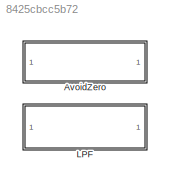
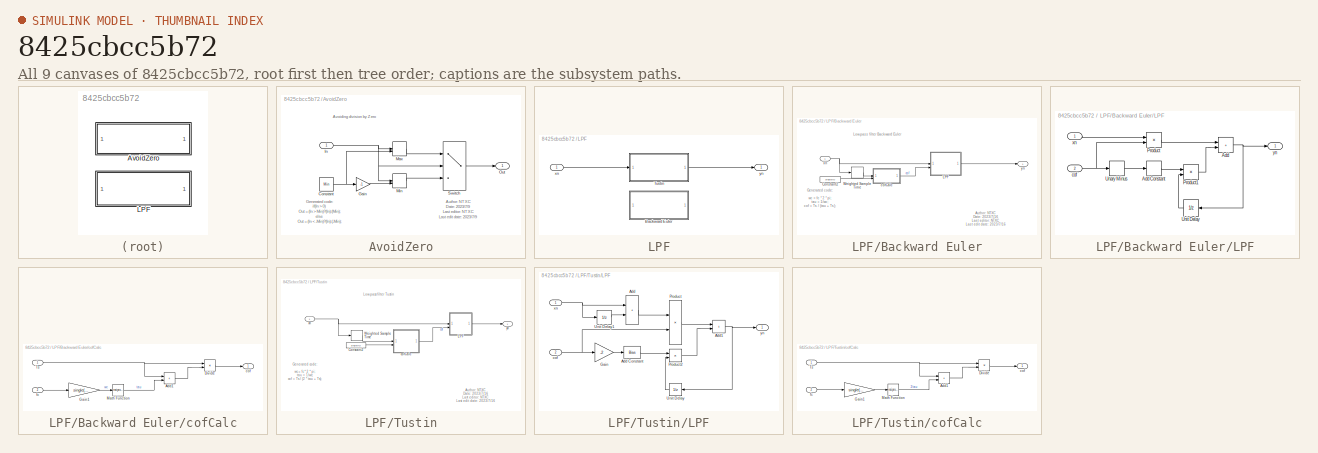
[diagram: thumbnail index - all 9 canvases of the model, root first then tree order]
MODEL slx_8425cbcc5b72
KIND library
CONFIG AbsTol = auto
CONFIG EnableMultiTasking = off
CONFIG FixedStep = auto
CONFIG MaxStep = auto
CONFIG MinStep = auto
CONFIG RelTol = 1e-3
CONFIG SampleTimeConstraint = Unconstrained
CONFIG SolverName = VariableStepAuto
CONFIG StartTime = 0.0
CONFIG StopTime = 10.0
BLOCK [SubSystem] AvoidZero
  RTWFcnNameOpts = Use subsystem name
  RTWFileName = Lib_General
  RTWFileNameOpts = User specified
  RTWSystemCode = Reusable function
  TreatAsAtomicUnit = on
BLOCK [Constant] AvoidZero/Constant
  OutDataTypeStr = single
  SampleTime = -1
  Value = Min
BLOCK [Gain] AvoidZero/Gain
  Gain = -1
BLOCK [Inport] AvoidZero/In
BLOCK [MinMax] AvoidZero/Max
  Function = max
  Inputs = 2
BLOCK [MinMax] AvoidZero/Min
  Inputs = 2
BLOCK [Outport] AvoidZero/Out
BLOCK [Switch] AvoidZero/Switch
  Criteria = u2 > Threshold
  InputSameDT = off
  SaturateOnIntegerOverflow = off
BLOCK [SubSystem] LPF
  AttributesFormatString = fc = %<fc>\nDisMod = %<ModType>
  RTWFcnNameOpts = Use subsystem name
  RTWFileName = Lib_General
  RTWFileNameOpts = User specified
  RTWSystemCode = Reusable function
  TreatAsAtomicUnit = on
BLOCK [SubSystem] LPF/Backward Euler
  Commented = on
BLOCK [Constant] LPF/Backward Euler/Constant2
  OutDataTypeStr = single
  SampleTime = -1
  Value = single(fc)
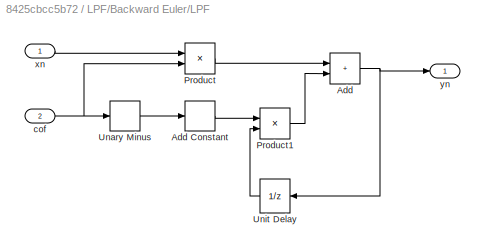
BLOCK [SubSystem] LPF/Backward Euler/LPF
BLOCK [Sum] LPF/Backward Euler/LPF/Add
  IconShape = rectangular
BLOCK [Bias] LPF/Backward Euler/LPF/Add Constant
  Bias = 1
  SaturateOnIntegerOverflow = off
BLOCK [Product] LPF/Backward Euler/LPF/Product
BLOCK [Product] LPF/Backward Euler/LPF/Product1
BLOCK [UnaryMinus] LPF/Backward Euler/LPF/Unary Minus
BLOCK [UnitDelay] LPF/Backward Euler/LPF/Unit Delay
  HasFrameUpgradeWarning = on
  InitialCondition = single(Initial_condition)
  NameLocation = top
  SampleTime = -1
BLOCK [Inport] LPF/Backward Euler/LPF/cof
  Port = 2
BLOCK [Inport] LPF/Backward Euler/LPF/xn
BLOCK [Outport] LPF/Backward Euler/LPF/yn
BLOCK [SampleTimeMath] LPF/Backward Euler/Weighted Sample Time
  OutDataTypeStr = single
  TsampMathOp = Ts Only
BLOCK [SubSystem] LPF/Backward Euler/cofCalc
BLOCK [Sum] LPF/Backward Euler/cofCalc/Add1
  IconShape = rectangular
BLOCK [Product] LPF/Backward Euler/cofCalc/Divide
  Inputs = */
BLOCK [Gain] LPF/Backward Euler/cofCalc/Gain1
  Gain = single(2*pi)
BLOCK [Math] LPF/Backward Euler/cofCalc/Math Function
  Operator = reciprocal
BLOCK [Inport] LPF/Backward Euler/cofCalc/Ts
BLOCK [Outport] LPF/Backward Euler/cofCalc/cof
BLOCK [Inport] LPF/Backward Euler/cofCalc/fc
  Port = 2
BLOCK [Inport] LPF/Backward Euler/xn
BLOCK [Outport] LPF/Backward Euler/yn
BLOCK [SubSystem] LPF/Tustin
BLOCK [Constant] LPF/Tustin/Constant2
  OutDataTypeStr = single
  OutMin = 0.001
  SampleTime = -1
  Value = single(fc)
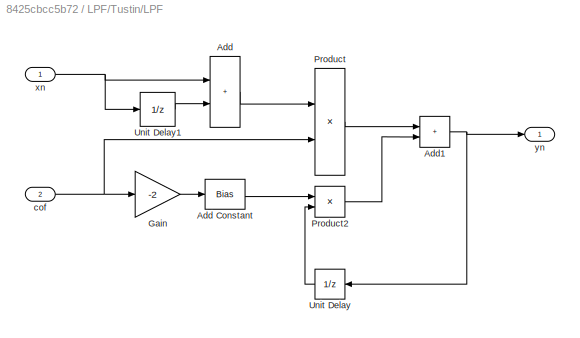
BLOCK [SubSystem] LPF/Tustin/LPF
BLOCK [Sum] LPF/Tustin/LPF/Add
  IconShape = rectangular
BLOCK [Bias] LPF/Tustin/LPF/Add Constant
  Bias = 1
  SaturateOnIntegerOverflow = off
BLOCK [Sum] LPF/Tustin/LPF/Add1
  IconShape = rectangular
BLOCK [Gain] LPF/Tustin/LPF/Gain
  Gain = -2
  OutDataTypeStr = Inherit: Same as input
BLOCK [Product] LPF/Tustin/LPF/Product
BLOCK [Product] LPF/Tustin/LPF/Product2
BLOCK [UnitDelay] LPF/Tustin/LPF/Unit Delay
  HasFrameUpgradeWarning = on
  InitialCondition = single(Initial_condition)
  NameLocation = top
  SampleTime = -1
BLOCK [UnitDelay] LPF/Tustin/LPF/Unit Delay1
  HasFrameUpgradeWarning = on
  InitialCondition = single(Initial_condition)
  SampleTime = -1
BLOCK [Inport] LPF/Tustin/LPF/cof
  Port = 2
BLOCK [Inport] LPF/Tustin/LPF/xn
BLOCK [Outport] LPF/Tustin/LPF/yn
BLOCK [SampleTimeMath] LPF/Tustin/Weighted Sample Time
  OutDataTypeStr = single
  TsampMathOp = Ts Only
BLOCK [SubSystem] LPF/Tustin/cofCalc
BLOCK [Sum] LPF/Tustin/cofCalc/Add1
  IconShape = rectangular
BLOCK [Product] LPF/Tustin/cofCalc/Divide
  Inputs = */
BLOCK [Gain] LPF/Tustin/cofCalc/Gain1
  Gain = single(pi)
BLOCK [Math] LPF/Tustin/cofCalc/Math Function
  Operator = reciprocal
BLOCK [Inport] LPF/Tustin/cofCalc/Ts
BLOCK [Outport] LPF/Tustin/cofCalc/cof
BLOCK [Inport] LPF/Tustin/cofCalc/fc
  Port = 2
BLOCK [Inport] LPF/Tustin/xn
BLOCK [Outport] LPF/Tustin/yn
BLOCK [Inport] LPF/xn
BLOCK [Outport] LPF/yn
ANNOTATION AvoidZero: Avoiding division by Zero
ANNOTATION AvoidZero: Author: NTXC Date: 2023/7/9 Last editor: NTXC Last edit date: 2023/7/9
ANNOTATION AvoidZero: Generated code: if(In > 0) Out = (In > Min)?(In):(Min); else Out = (In < -Min)?(In):(-Min); end
ANNOTATION LPF/Backward Euler: Low-pass filter Backward Euler
ANNOTATION LPF/Backward Euler: Author: NTXC Date: 2023/7/16 Last editor: NTXC Last edit date: 2023/7/16
ANNOTATION LPF/Backward Euler: Generated code: wc = fc * 2 * pi; tau = 1/wc; cof = Ts / (tau + Ts); yn = cof * xn + (1 - cof) * ynZ1; ynZ1 = yn;
ANNOTATION LPF/Tustin: Low-pass filter Tustin
ANNOTATION LPF/Tustin: Author: NTXC Date: 2023/7/16 Last editor: NTXC Last edit date: 2023/7/16
ANNOTATION LPF/Tustin: Generated code: wc = fc * 2 * pi; tau = 1/wc; cof = Ts / (2 * tau + Ts); yn = cof * xn + cof * xnZ1 + (1 - 2 * cof) * ynZ1; xnZ1 = xn; ynZ1 = yn;
NET AvoidZero/Constant:1 -> AvoidZero/Gain:1, AvoidZero/Max:2
LINE AvoidZero/Gain:1 -> AvoidZero/Min:2
NET AvoidZero/In:1 -> AvoidZero/Max:1, AvoidZero/Min:1, AvoidZero/Switch:2
LINE AvoidZero/Max:1 -> AvoidZero/Switch:1
LINE AvoidZero/Min:1 -> AvoidZero/Switch:3
LINE AvoidZero/Switch:1 -> AvoidZero/Out:1
note: NET lines group one-source signal fan-out (src -> all destinations, sorted); 1:1 wires keep LINE
